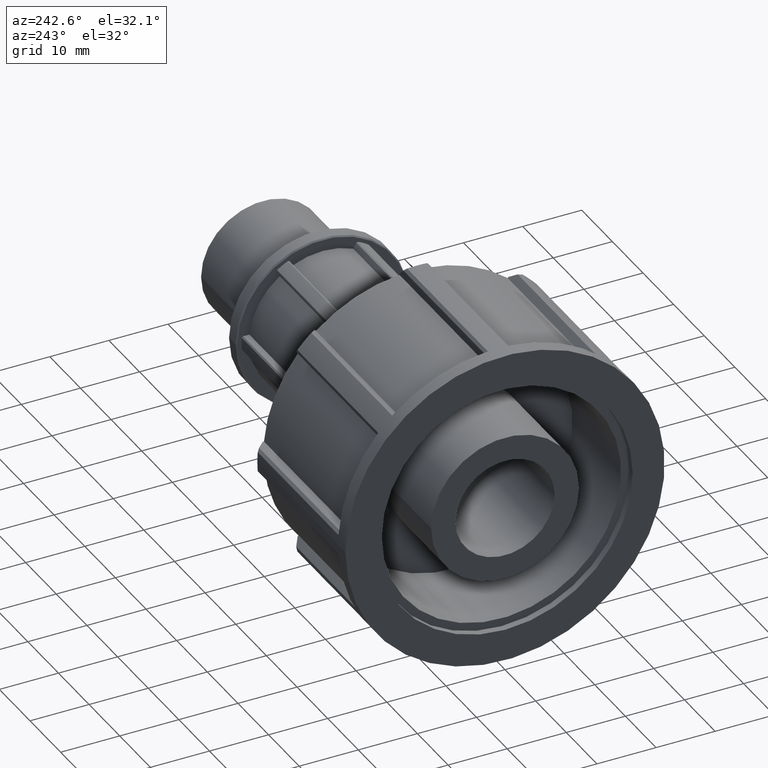
[diagram: clean part render]
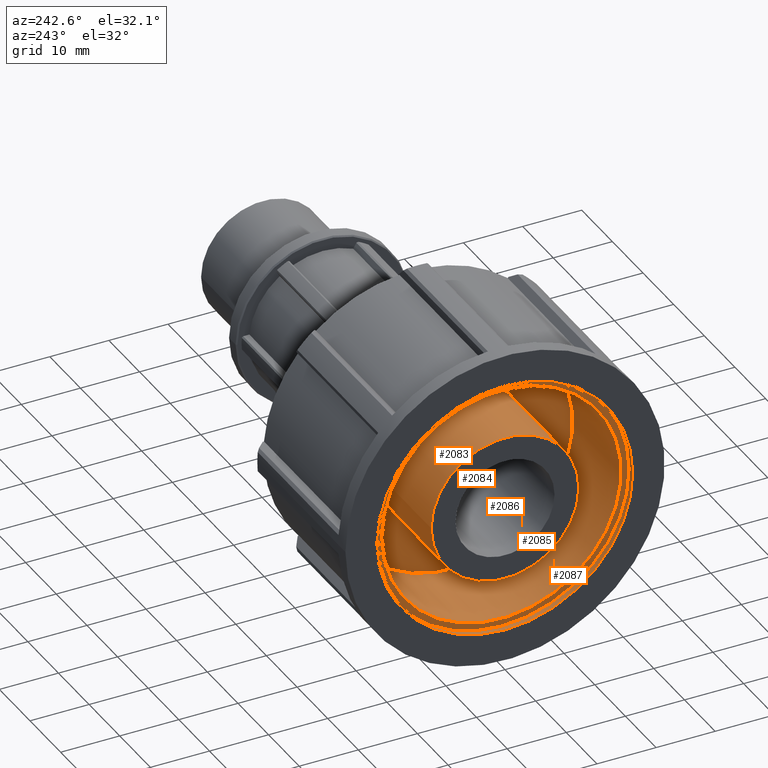
[diagram: same view with one multi-face feature highlighted, each face labeled with its STEP entity id]
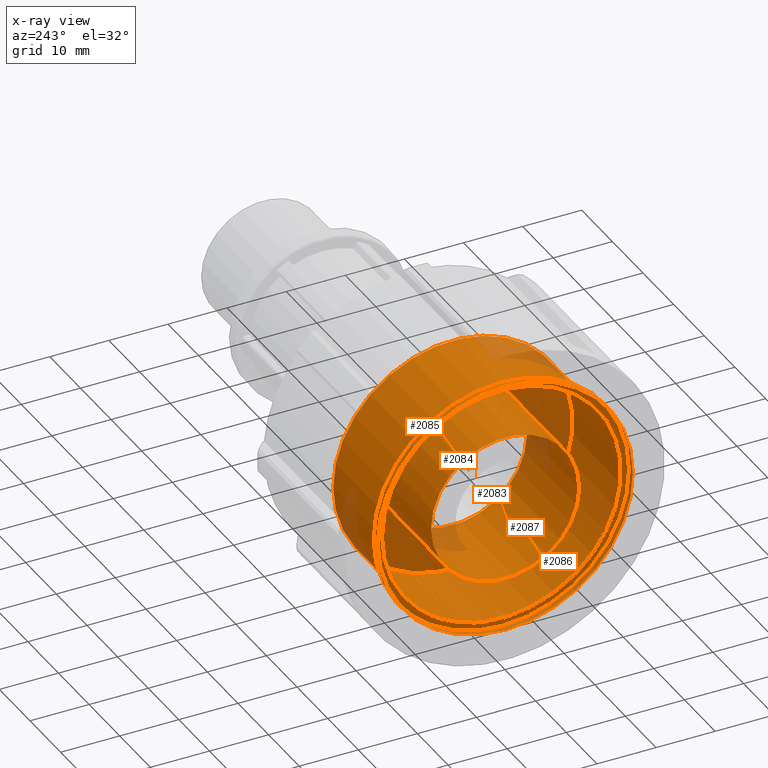
[diagram: x-ray of the same camera — body ghosted, the whole feature saturated]
A machine part, auxiliary view. The highlighted faces form ONE feature: a stepped (counterbored) hole: 3 coaxial cylindrical walls of radii 12.5 -> 20.25 -> 21.6 mm joined by 2 annular planar shoulder face(s). The faces share edges in the B-rep.
The next image is the same camera in x-ray: the body ghosted and the whole hole feature saturated, so the bore chain is visible through the body.
Their STEP definitions:
[1] entity #2087 (Cylinder):
#74=FACE_BOUND('',#436,.T.);
#161=CIRCLE('',#2284,21.6);
#162=CIRCLE('',#2286,21.6);
#192=CYLINDRICAL_SURFACE('',#2285,21.6);
#304=FACE_OUTER_BOUND('',#435,.T.);
#435=EDGE_LOOP('',(#1891));
#436=EDGE_LOOP('',(#1892));
#1009=VERTEX_POINT('',#3543);
#1010=VERTEX_POINT('',#3546);
#1306=EDGE_CURVE('',#1009,#1009,#161,.T.);
#1307=EDGE_CURVE('',#1010,#1010,#162,.T.);
#1891=ORIENTED_EDGE('',*,*,#1307,.F.);
#1892=ORIENTED_EDGE('',*,*,#1306,.T.);
#2087=ADVANCED_FACE('',(#304,#74),#192,.F.);
#2284=AXIS2_PLACEMENT_3D('',#3544,#2854,#2855);
#2285=AXIS2_PLACEMENT_3D('',#3545,#2856,#2857);
#2286=AXIS2_PLACEMENT_3D('',#3547,#2858,#2859);
#2854=DIRECTION('center_axis',(1.,0.,0.));
#2855=DIRECTION('ref_axis',(0.,0.,-1.));
#2856=DIRECTION('center_axis',(1.,0.,0.));
#2857=DIRECTION('ref_axis',(0.,1.,0.));
#2858=DIRECTION('center_axis',(1.,0.,0.));
#2859=DIRECTION('ref_axis',(0.,0.,-1.));
#3543=CARTESIAN_POINT('',(1.185,21.6,0.));
#3544=CARTESIAN_POINT('Origin',(1.185,0.,0.));
#3545=CARTESIAN_POINT('Origin',(0.592499999999996,0.,0.));
#3546=CARTESIAN_POINT('',(0.,21.6,0.));
#3547=CARTESIAN_POINT('Origin',(0.,0.,0.));
[2] entity #2085 (Cylinder):
#72=FACE_BOUND('',#432,.T.);
#159=CIRCLE('',#2280,20.25);
#160=CIRCLE('',#2282,20.25);
#191=CYLINDRICAL_SURFACE('',#2281,20.25);
#302=FACE_OUTER_BOUND('',#431,.T.);
#431=EDGE_LOOP('',(#1887));
#432=EDGE_LOOP('',(#1888));
#1007=VERTEX_POINT('',#3537);
#1008=VERTEX_POINT('',#3540);
#1304=EDGE_CURVE('',#1007,#1007,#159,.T.);
#1305=EDGE_CURVE('',#1008,#1008,#160,.T.);
#1887=ORIENTED_EDGE('',*,*,#1305,.F.);
#1888=ORIENTED_EDGE('',*,*,#1304,.T.);
#2085=ADVANCED_FACE('',(#302,#72),#191,.F.);
#2280=AXIS2_PLACEMENT_3D('',#3538,#2846,#2847);
#2281=AXIS2_PLACEMENT_3D('',#3539,#2848,#2849);
#2282=AXIS2_PLACEMENT_3D('',#3541,#2850,#2851);
#2846=DIRECTION('center_axis',(1.,0.,0.));
#2847=DIRECTION('ref_axis',(0.,0.,-1.));
#2848=DIRECTION('center_axis',(1.,0.,0.));
#2849=DIRECTION('ref_axis',(0.,1.,0.));
#2850=DIRECTION('center_axis',(1.,0.,0.));
#2851=DIRECTION('ref_axis',(0.,0.,-1.));
#3537=CARTESIAN_POINT('',(17.,20.25,0.));
#3538=CARTESIAN_POINT('Origin',(17.,0.,0.));
#3539=CARTESIAN_POINT('Origin',(9.0925,0.,0.));
#3540=CARTESIAN_POINT('',(1.185,20.25,0.));
#3541=CARTESIAN_POINT('Origin',(1.185,0.,0.));
[3] entity #2083 (Cylinder):
#70=FACE_BOUND('',#428,.T.);
#157=CIRCLE('',#2276,12.5);
#158=CIRCLE('',#2278,12.5);
#190=CYLINDRICAL_SURFACE('',#2277,12.5);
#300=FACE_OUTER_BOUND('',#427,.T.);
#427=EDGE_LOOP('',(#1883));
#428=EDGE_LOOP('',(#1884));
#1005=VERTEX_POINT('',#3531);
#1006=VERTEX_POINT('',#3534);
#1302=EDGE_CURVE('',#1005,#1005,#157,.T.);
#1303=EDGE_CURVE('',#1006,#1006,#158,.T.);
#1883=ORIENTED_EDGE('',*,*,#1303,.F.);
#1884=ORIENTED_EDGE('',*,*,#1302,.T.);
#2083=ADVANCED_FACE('',(#300,#70),#190,.T.);
#2276=AXIS2_PLACEMENT_3D('',#3532,#2838,#2839);
#2277=AXIS2_PLACEMENT_3D('',#3533,#2840,#2841);
#2278=AXIS2_PLACEMENT_3D('',#3535,#2842,#2843);
#2838=DIRECTION('center_axis',(1.,0.,0.));
#2839=DIRECTION('ref_axis',(0.,0.,-1.));
#2840=DIRECTION('center_axis',(1.,0.,0.));
#2841=DIRECTION('ref_axis',(0.,1.,0.));
#2842=DIRECTION('center_axis',(1.,0.,0.));
#2843=DIRECTION('ref_axis',(0.,0.,-1.));
#3531=CARTESIAN_POINT('',(0.,12.5,0.));
#3532=CARTESIAN_POINT('Origin',(0.,0.,0.));
#3533=CARTESIAN_POINT('Origin',(8.5,0.,0.));
#3534=CARTESIAN_POINT('',(17.,12.5,0.));
#3535=CARTESIAN_POINT('Origin',(17.,0.,0.));
[4] entity #2086 (Plane):
#73=FACE_BOUND('',#434,.T.);
#160=CIRCLE('',#2282,20.25);
#161=CIRCLE('',#2284,21.6);
#303=FACE_OUTER_BOUND('',#433,.T.);
#433=EDGE_LOOP('',(#1889));
#434=EDGE_LOOP('',(#1890));
#1008=VERTEX_POINT('',#3540);
#1009=VERTEX_POINT('',#3543);
#1305=EDGE_CURVE('',#1008,#1008,#160,.T.);
#1306=EDGE_CURVE('',#1009,#1009,#161,.T.);
#1889=ORIENTED_EDGE('',*,*,#1306,.F.);
#1890=ORIENTED_EDGE('',*,*,#1305,.T.);
#1975=PLANE('',#2283);
#2086=ADVANCED_FACE('',(#303,#73),#1975,.T.);
#2282=AXIS2_PLACEMENT_3D('',#3541,#2850,#2851);
#2283=AXIS2_PLACEMENT_3D('',#3542,#2852,#2853);
#2284=AXIS2_PLACEMENT_3D('',#3544,#2854,#2855);
#2850=DIRECTION('center_axis',(1.,0.,0.));
#2851=DIRECTION('ref_axis',(0.,0.,-1.));
#2852=DIRECTION('center_axis',(-1.,0.,0.));
#2853=DIRECTION('ref_axis',(0.,0.,1.));
#2854=DIRECTION('center_axis',(1.,0.,0.));
#2855=DIRECTION('ref_axis',(0.,0.,-1.));
#3540=CARTESIAN_POINT('',(1.185,20.25,0.));
#3541=CARTESIAN_POINT('Origin',(1.185,0.,0.));
#3542=CARTESIAN_POINT('Origin',(1.185,21.6,0.));
#3543=CARTESIAN_POINT('',(1.185,21.6,0.));
#3544=CARTESIAN_POINT('Origin',(1.185,0.,0.));
[5] entity #2084 (Plane):
#71=FACE_BOUND('',#430,.T.);
#158=CIRCLE('',#2278,12.5);
#159=CIRCLE('',#2280,20.25);
#301=FACE_OUTER_BOUND('',#429,.T.);
#429=EDGE_LOOP('',(#1885));
#430=EDGE_LOOP('',(#1886));
#1006=VERTEX_POINT('',#3534);
#1007=VERTEX_POINT('',#3537);
#1303=EDGE_CURVE('',#1006,#1006,#158,.T.);
#1304=EDGE_CURVE('',#1007,#1007,#159,.T.);
#1885=ORIENTED_EDGE('',*,*,#1304,.F.);
#1886=ORIENTED_EDGE('',*,*,#1303,.T.);
#1974=PLANE('',#2279);
#2084=ADVANCED_FACE('',(#301,#71),#1974,.T.);
#2278=AXIS2_PLACEMENT_3D('',#3535,#2842,#2843);
#2279=AXIS2_PLACEMENT_3D('',#3536,#2844,#2845);
#2280=AXIS2_PLACEMENT_3D('',#3538,#2846,#2847);
#2842=DIRECTION('center_axis',(1.,0.,0.));
#2843=DIRECTION('ref_axis',(0.,0.,-1.));
#2844=DIRECTION('center_axis',(-1.,0.,0.));
#2845=DIRECTION('ref_axis',(0.,0.,1.));
#2846=DIRECTION('center_axis',(1.,0.,0.));
#2847=DIRECTION('ref_axis',(0.,0.,-1.));
#3534=CARTESIAN_POINT('',(17.,12.5,0.));
#3535=CARTESIAN_POINT('Origin',(17.,0.,0.));
#3536=CARTESIAN_POINT('Origin',(17.,20.25,0.));
#3537=CARTESIAN_POINT('',(17.,20.25,0.));
#3538=CARTESIAN_POINT('Origin',(17.,0.,0.));